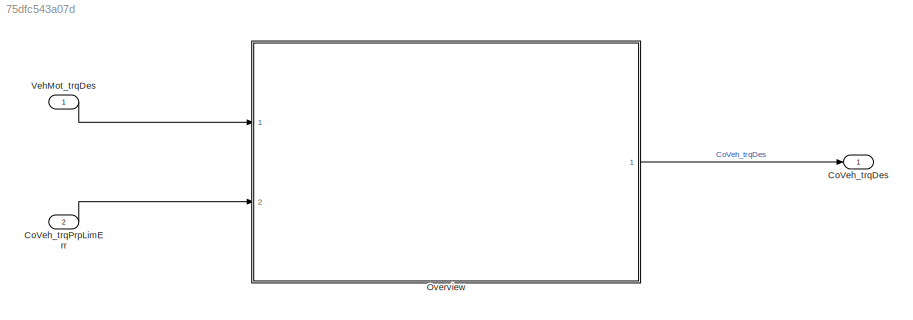
MODEL slx_75dfc543a07d
KIND model
CONFIG AbsTol = auto
CONFIG EnableMultiTasking = off
CONFIG FixedStep = 0.001
CONFIG MaxStep = auto
CONFIG MinStep = auto
CONFIG RelTol = 1e-3
CONFIG SampleTimeConstraint = Unconstrained
CONFIG Solver = FixedStepDiscrete
CONFIG SolverName = FixedStepDiscrete
CONFIG StartTime = 0.0
CONFIG StopTime = Inf
BLOCK [Outport] CoVeh_trqDes
  IconDisplay = Port number
BLOCK [Inport] CoVeh_trqPrpLimErr
  Description = limitation torque for propulsion at system error
  IconDisplay = Port number
  OutDataTypeStr = Torq
  OutMax = 3000
  OutMin = -3000
  Port = 2
  PortDimensions = [1 1]
  Unit = Nm
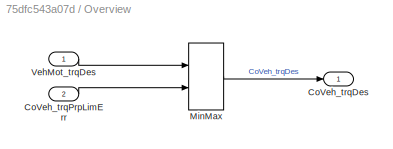
BLOCK [SubSystem] Overview
  Ports = [2, 1]
  RequestExecContextInheritance = off
BLOCK [Outport] Overview/CoVeh_trqDes
  IconDisplay = Port number
  Tag = Nm
BLOCK [Inport] Overview/CoVeh_trqPrpLimErr
  IconDisplay = Port number
  Port = 2
  Tag = Nm
BLOCK [MinMax] Overview/MinMax
  InputSameDT = off
  Inputs = 2
  Ports = [2, 1]
  SaturateOnIntegerOverflow = off
BLOCK [Inport] Overview/VehMot_trqDes
  IconDisplay = Port number
  Tag = Nm
BLOCK [Inport] VehMot_trqDes
  Description = Desired torque for propulsion (transmission output torque)
  IconDisplay = Port number
  OutDataTypeStr = Torq
  OutMax = 3000
  OutMin = -3000
  PortDimensions = [1 1]
  Unit = Nm
LINE CoVeh_trqPrpLimErr:1 -> Overview:2
LINE Overview/CoVeh_trqPrpLimErr:1 -> Overview/MinMax:2
LINE Overview/MinMax:1 -> Overview/CoVeh_trqDes:1
LINE Overview/VehMot_trqDes:1 -> Overview/MinMax:1
LINE Overview:1 -> CoVeh_trqDes:1
LINE VehMot_trqDes:1 -> Overview:1
